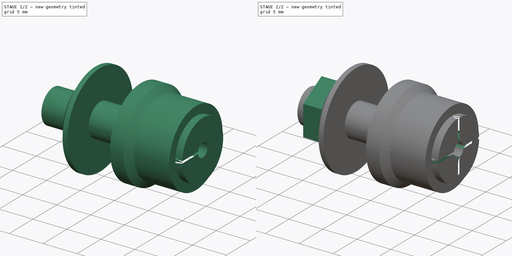
[diagram: build sequence overview — one tinted view per stage of 2, left to right]
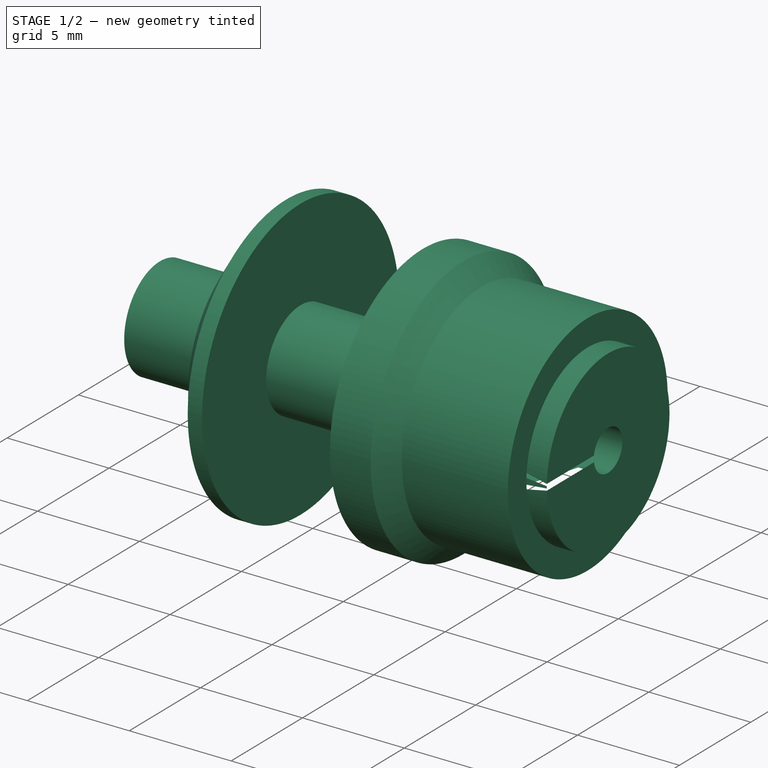
[diagram: stage 1 of 2 — iso view after this stage's code; geometry added in this stage tinted green]
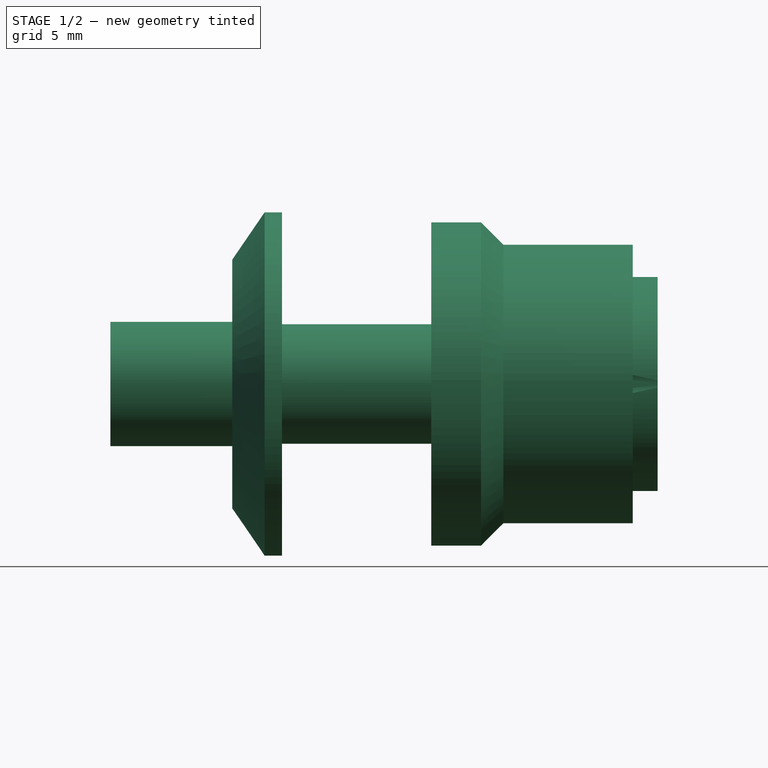
[diagram: stage 1 of 2 — front view after this stage's code; geometry added in this stage tinted green]
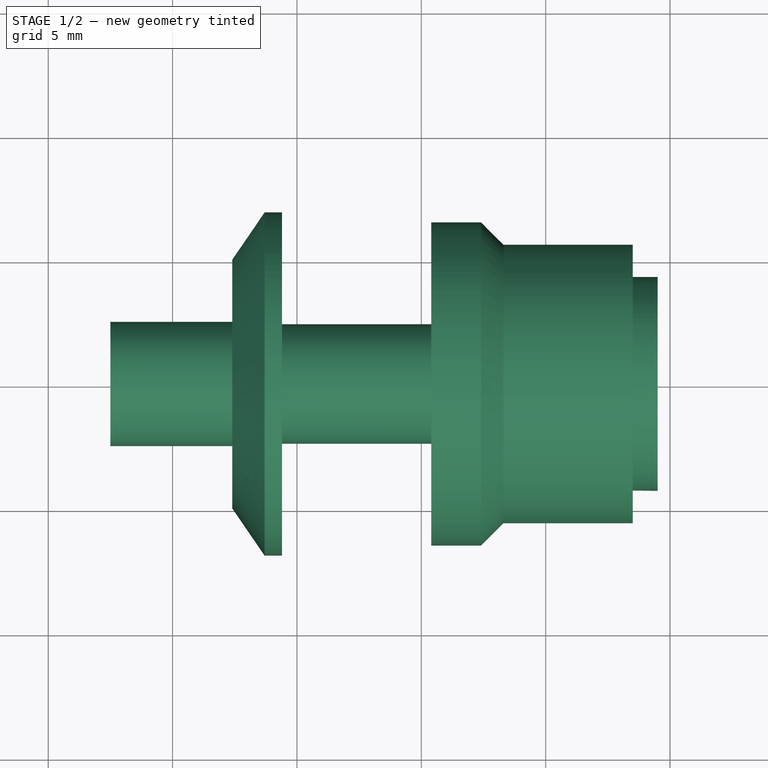
[diagram: stage 1 of 2 — top view after this stage's code; geometry added in this stage tinted green]
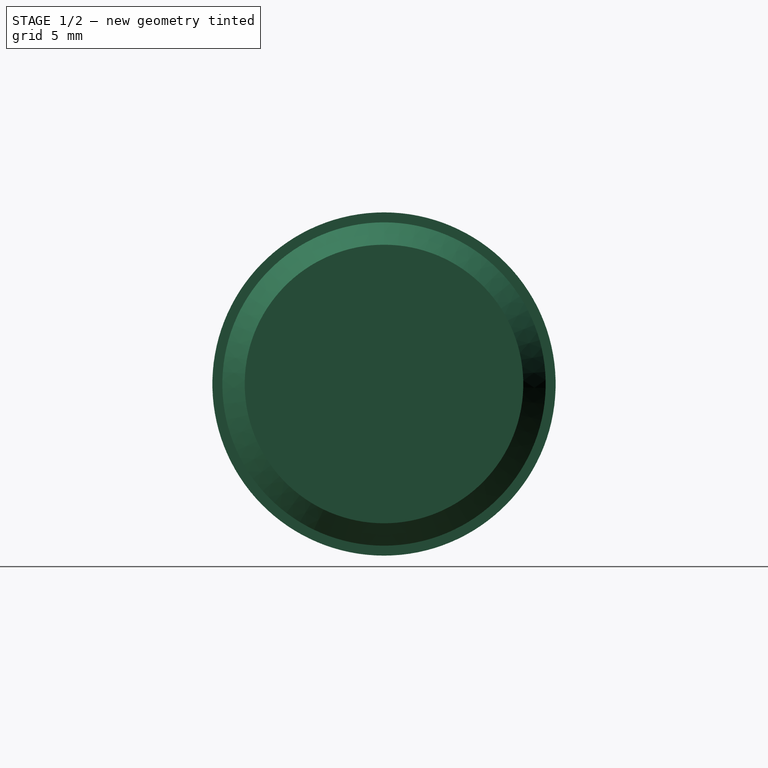
[diagram: stage 1 of 2 — right view after this stage's code; geometry added in this stage tinted green]
FCSTD DOCUMENT  (FreeCAD 0.18R16093 (Git))
Label: Adaptador_Eje
License: All rights reserved
LicenseURL: http://en.wikipedia.org/wiki/All_rights_reserved
objects: Sketcher::SketchObject×3, PartDesign::Revolution×1, PartDesign::Pocket×1, PartDesign::PolarPattern×1, PartDesign::Pad×1, PartDesign::Body×1
note: 11 computed .brp shape members not serialized (recipe doc carries the construction recipe); baked Part::Feature solids carry a one-line shape summary decoded from their .brp

FEATURE [Sketcher::SketchObject] Sketch167
  MapMode = 5
  Placement = pos=(0,0,0) rot=(1,0,0;1.5708rad)
  Support = -> [XZ_Plane071]
  sketch-geometry (17):
    g0: LineSegment StartX=0 StartY=0 StartZ=0 EndX=0 EndY=1 EndZ=0
    g1: LineSegment StartX=0 StartY=1 StartZ=0 EndX=4.5 EndY=1 EndZ=0
    g2: LineSegment StartX=4.5 StartY=1 StartZ=0 EndX=4.5 EndY=4.3 EndZ=0
    g3: LineSegment StartX=4.5 StartY=4.3 StartZ=0 EndX=3.5 EndY=4.3 EndZ=0
    g4: LineSegment StartX=3.5 StartY=4.3 StartZ=0 EndX=3.5 EndY=5.6 EndZ=0
    g5: LineSegment StartX=3.5 StartY=5.6 StartZ=0 EndX=-1.7 EndY=5.6 EndZ=0
    g6: LineSegment StartX=-1.7 StartY=5.6 StartZ=0 EndX=-2.6 EndY=6.5 EndZ=0
    g7: LineSegment StartX=-2.6 StartY=6.5 StartZ=0 EndX=-4.6 EndY=6.5 EndZ=0
    g8: LineSegment StartX=-4.6 StartY=6.5 StartZ=0 EndX=-4.6 EndY=2.4 EndZ=0
    g9: LineSegment StartX=-4.6 StartY=2.4 StartZ=0 EndX=-10.6 EndY=2.4 EndZ=0
    g10: LineSegment StartX=-10.6 StartY=2.4 StartZ=0 EndX=-10.6 EndY=6.9 EndZ=0
    g11: LineSegment StartX=-10.6 StartY=6.9 StartZ=0 EndX=-11.3 EndY=6.9 EndZ=0
    g12: LineSegment StartX=-11.3 StartY=6.9 StartZ=0 EndX=-12.6 EndY=5 EndZ=0
    g13: LineSegment StartX=-12.6 StartY=5 StartZ=0 EndX=-12.6 EndY=2.5 EndZ=0
    g14: LineSegment StartX=-12.6 StartY=2.5 StartZ=0 EndX=-17.5 EndY=2.5 EndZ=0
    g15: LineSegment StartX=-17.5 StartY=2.5 StartZ=0 EndX=-17.5 EndY=0 EndZ=0
    g16: LineSegment StartX=-17.5 StartY=0 StartZ=0 EndX=0 EndY=0 EndZ=0
  constraints (50):
    c: Vertical(g0)
    c: Coincident(g0,g1)
    c: Horizontal(g1)
    c: Coincident(g1,g2)
    c: Vertical(g2)
    c: Coincident(g2,g3)
    c: Coincident(g3,g4)
    c: Coincident(g4,g5)
    c: Horizontal(g5)
    c: Coincident(g5,g6)
    c: Coincident(g6,g7)
    c: Coincident(g7,g8)
    c: Vertical(g8)
    c: Coincident(g8,g9)
    c: Horizontal(g9)
    c: Coincident(g9,g10)
    c: Vertical(g10)
    c: Coincident(g10,g11)
    c: Horizontal(g11)
    c: Coincident(g11,g12)
    c: Coincident(g12,g13)
    c: Horizontal(g14)
    c: Coincident(g14,g15)
    c: PointOnObject(g15,g-1)
    c: Vertical(g15)
    c: DistanceY(g0,g0) = 1
    c: Angle(g5,g6) = 2.35619
    c: DistanceX(g5,g5) = 5.2
    c: Vertical(g4)
    c: Horizontal(g3)
    c: DistanceY(g4,g4) = 1.3
    c: DistanceX(g3,g3) = 1
    c: DistanceY(g2,g2) = 3.3
    c: Distance(g-1,g9) = 2.4
    c: Horizontal(g7)
    c: DistanceX(g7,g7) = 2
    c: DistanceX(g7,g4) = 8.1
    c: DistanceX(g1,g1) = 4.5
    c: DistanceY(g10,g10) = 4.5
    c: Vertical(g13)
    c: DistanceX(g9,g9) = 6
    c: DistanceX(g11,g11) = 0.7
    c: DistanceX(g12,g10) = 2
    c: DistanceY(g-1,g12) = 5
    c: DistanceY(g15,g15) = 2.5
    c: DistanceX(g15,g1) = 22
    c: Coincident(g0,g-1)
    c: Coincident(g16,g15)
    c: Coincident(g16,g0)
    c: Coincident(g13,g14)
FEATURE [PartDesign::Revolution] Revolution
  Angle = 360
  Axis = (1,0,0)
  Base = (0,0,0)
  Placement = pos=(0,0,0) rot=(1,0,0;1.5708rad)
  Profile = -> Sketch167
  ReferenceAxis = -> X_Axis071
FEATURE [Sketcher::SketchObject] Sketch168
  ExternalGeometry = -> [Revolution]
  MapMode = 5
  Placement = pos=(4.5,0,0) rot=(0.707107,0,0.707107;3.14159rad)
  Support = -> [Revolution]
  sketch-geometry (4):
    g0: LineSegment StartX=-0.15 StartY=4.29738 StartZ=0 EndX=0.15 EndY=4.29738 EndZ=0
    g1: LineSegment StartX=0.15 StartY=4.29738 StartZ=0 EndX=0.15 EndY=0.988686 EndZ=0
    g2: LineSegment StartX=0.15 StartY=0.988686 StartZ=0 EndX=-0.15 EndY=0.988686 EndZ=0
    g3: LineSegment StartX=-0.15 StartY=0.988686 StartZ=0 EndX=-0.15 EndY=4.29738 EndZ=0
  constraints (11):
    c: Coincident(g0,g1)
    c: Coincident(g1,g2)
    c: Coincident(g2,g3)
    c: Coincident(g3,g0)
    c: Horizontal(g2)
    c: Vertical(g1)
    c: Vertical(g3)
    c: Symmetric(g0,g0,g-2)
    c: PointOnObject(g2,g-4)
    c: DistanceX(g2,g2) = 0.3
    c: PointOnObject(g0,g-3)
FEATURE [PartDesign::Pocket] Pocket063
  BaseFeature = -> Revolution
  Length = 5
  Length2 = 100
  Placement = pos=(0,0,0) rot=(1,0,0;1.5708rad)
  Profile = -> Sketch168
  Type = 0
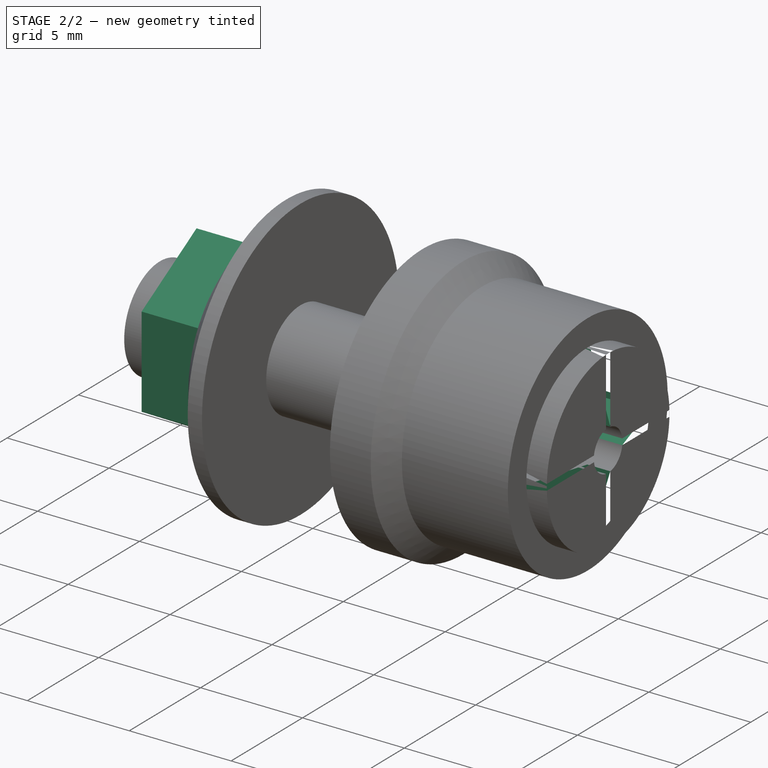
[diagram: stage 2 of 2 — iso view after this stage's code; geometry added in this stage tinted green]
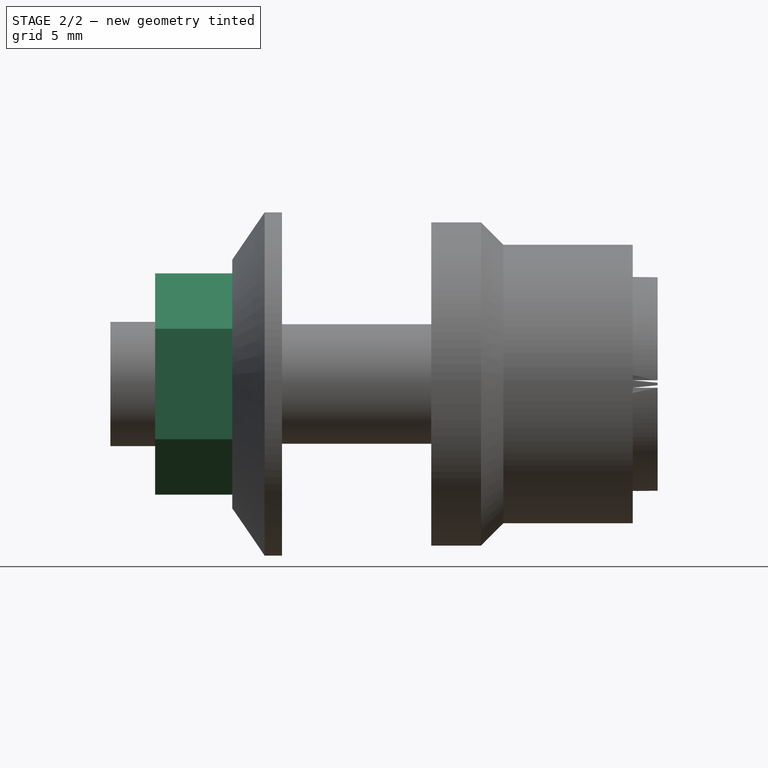
[diagram: stage 2 of 2 — front view after this stage's code; geometry added in this stage tinted green]
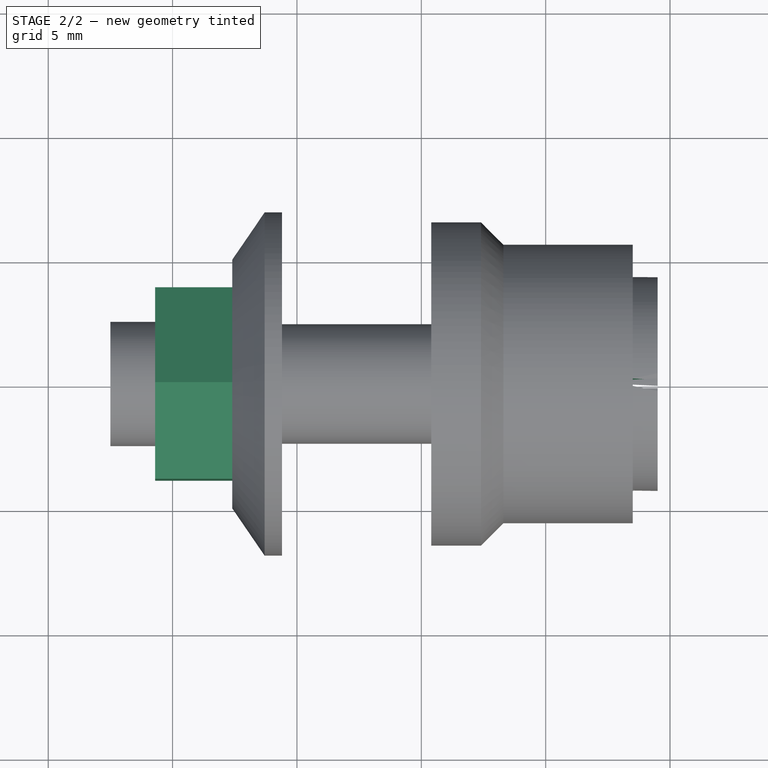
[diagram: stage 2 of 2 — top view after this stage's code; geometry added in this stage tinted green]
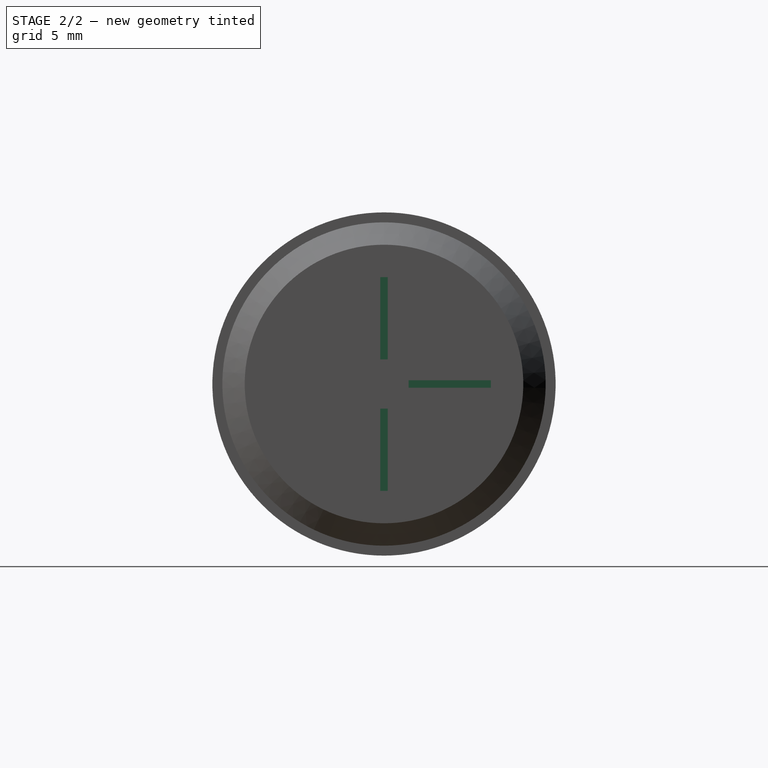
[diagram: stage 2 of 2 — right view after this stage's code; geometry added in this stage tinted green]
FEATURE [PartDesign::PolarPattern] PolarPattern001
  Angle = 360
  Axis = -> X_Axis071
  BaseFeature = -> Pocket063
  Occurrences = 4
  Originals = -> [Pocket063]
  Placement = pos=(0,0,0) rot=(1,0,0;1.5708rad)
FEATURE [Sketcher::SketchObject] Sketch169
  MapMode = 5
  Placement = pos=(-12.6,0,0) rot=(0.707107,0,-0.707107;3.14159rad)
  Support = -> [PolarPattern001]
  sketch-geometry (7):
    g0: LineSegment StartX=-2.2228 StartY=-3.85 StartZ=0 EndX=2.2228 EndY=-3.85 EndZ=0
    g1: LineSegment StartX=2.2228 StartY=-3.85 StartZ=0 EndX=4.4456 EndY=-4e-16 EndZ=0
    g2: LineSegment StartX=4.4456 StartY=-4e-16 StartZ=0 EndX=2.2228 EndY=3.85 EndZ=0
    g3: LineSegment StartX=2.2228 StartY=3.85 StartZ=0 EndX=-2.2228 EndY=3.85 EndZ=0
    g4: LineSegment StartX=-2.2228 StartY=3.85 StartZ=0 EndX=-4.4456 EndY=-4e-16 EndZ=0
    g5: LineSegment StartX=-4.4456 StartY=-4e-16 StartZ=0 EndX=-2.2228 EndY=-3.85 EndZ=0
    g6: Circle [constr] CenterX=0 CenterY=0 CenterZ=0 NormalX=0 NormalY=0 NormalZ=1 AngleXU=0 Radius=4.4456
  constraints (17):
    c: Coincident(g0,g1)
    c: Coincident(g1,g2)
    c: Coincident(g2,g3)
    c: Coincident(g3,g4)
    c: Coincident(g4,g5)
    c: Coincident(g5,g0)
    c: Equal(g0, g1-g5) x5
    c: PointOnObject(g0,g6)
    c: PointOnObject(g1,g6)
    c: PointOnObject(g2,g6)
    c: PointOnObject(g3,g6)
    c: PointOnObject(g4,g6)
    c: PointOnObject(g5,g6)
    c: PointOnObject(g6,g-2)
    c: PointOnObject(g6,g-1)
    c: Horizontal(g3)
    c: DistanceY(g0,g2) = 7.7
FEATURE [PartDesign::Pad] Pad088
  BaseFeature = -> PolarPattern001
  Length = 3.1
  Length2 = 100
  Placement = pos=(0,0,0) rot=(1,0,0;1.5708rad)
  Profile = -> Sketch169
  Type = 0
FEATURE [PartDesign::Body] Body072  label="Adaptador_Eje"
  Group = -> [Sketch167,Revolution,Sketch168,Pocket063,PolarPattern001,Sketch169,Pad088]
  Origin = -> Origin072
  Tip = -> Pad088
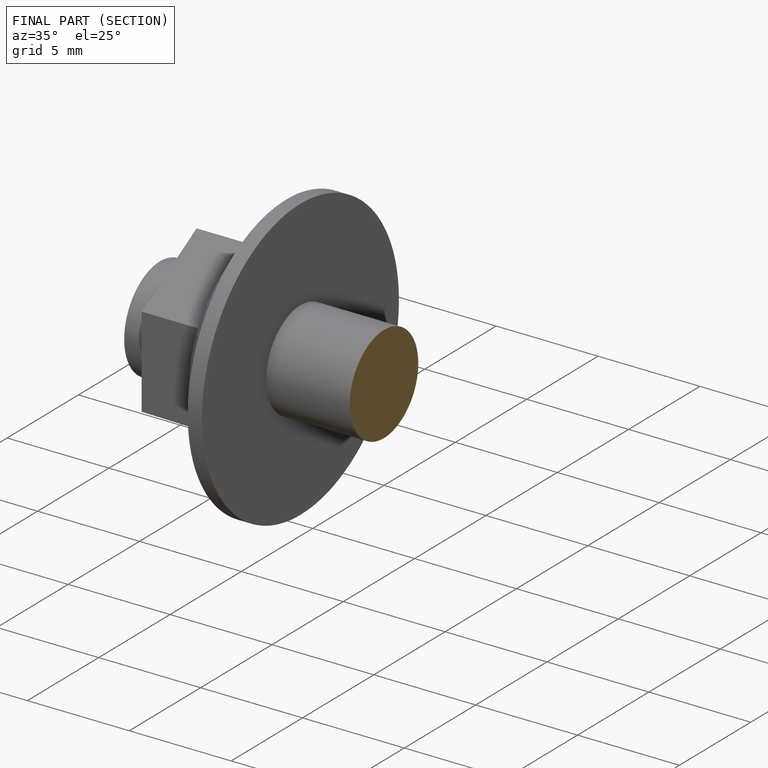
[diagram: finished part — half-section view (interior)]
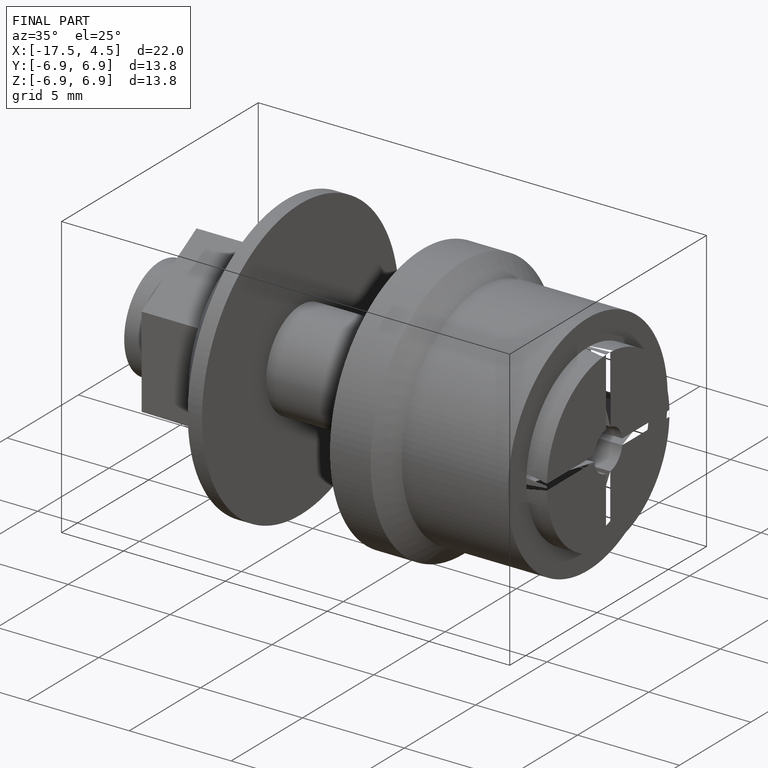
[diagram: finished part — iso view with bounding-box wireframe]
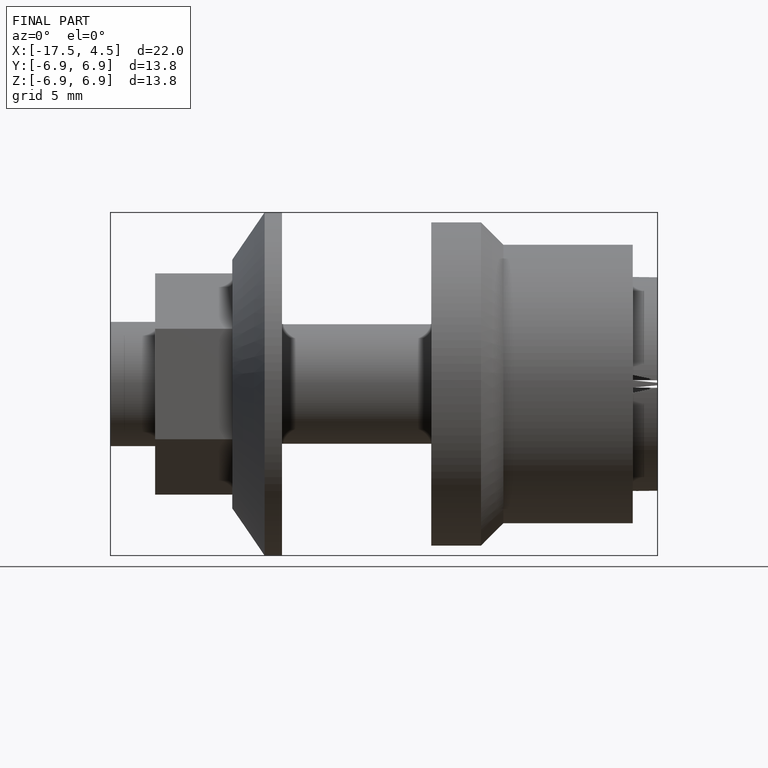
[diagram: finished part — front view with bounding-box wireframe]
